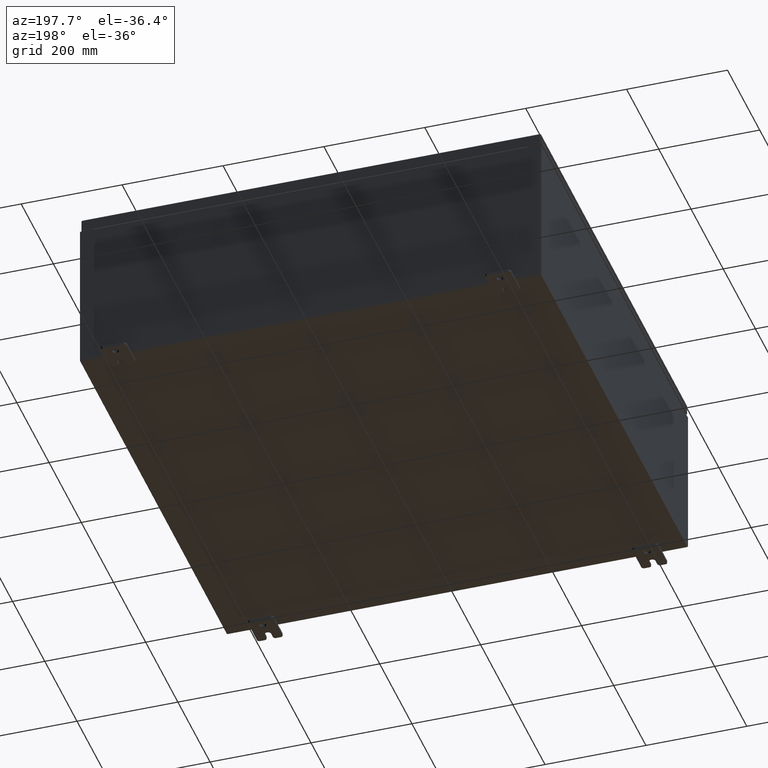
[diagram: clean part render]
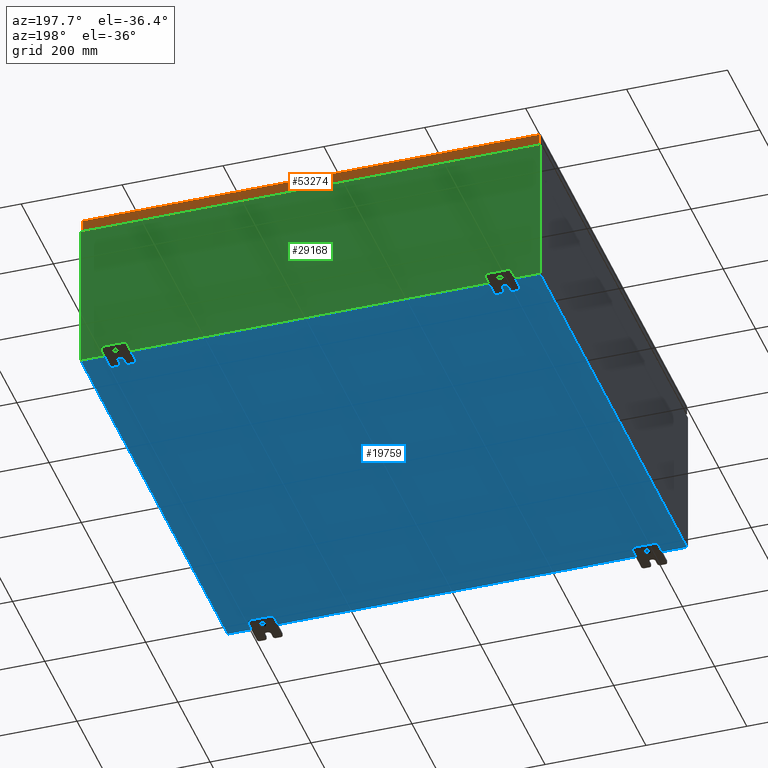
[diagram: same view with three faces highlighted in distinct colors, each labeled with its STEP entity id]
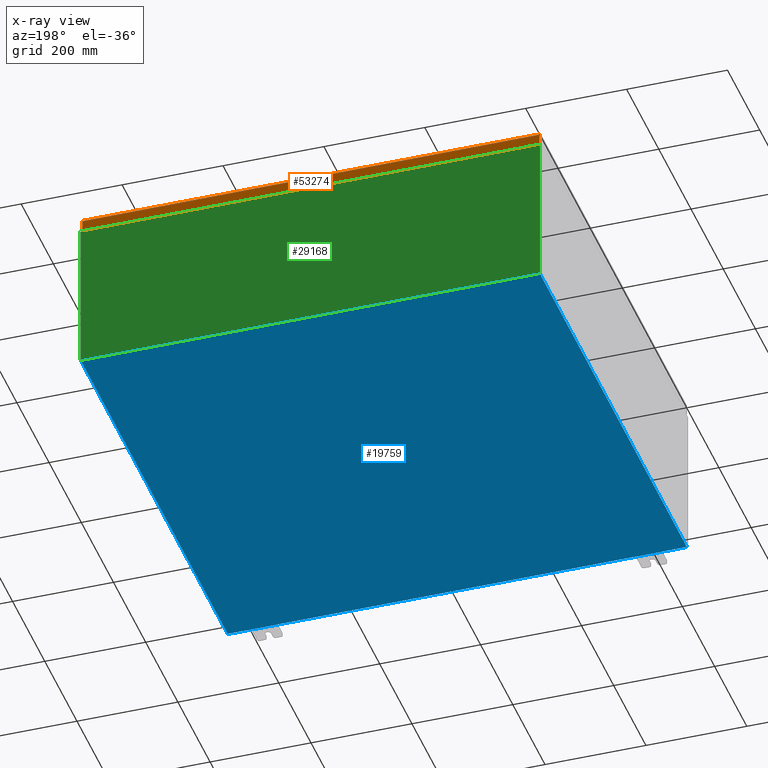
[diagram: x-ray of the same camera — body ghosted, the three highlighted faces saturated]
A machine part, auxiliary view with three faces highlighted in distinct colors.
The next image is the same camera in x-ray (body ghosted, the three faces saturated) — at least one of them is partly hidden behind the body in this view.
Their STEP definitions:

[orange] entity #53274 — the highlighted planar face has unit normal (0, -1, -0).
#287 = VERTEX_POINT ( 'NONE', #67165 ) ;
#442 = CARTESIAN_POINT ( 'NONE',  ( -17.84865786437626400, 17.93750000000000400, -0.9377000000000042000 ) ) ;
#3487 = VECTOR ( 'NONE', #4446, 39.37007874015748100 ) ;
#3960 = CARTESIAN_POINT ( 'NONE',  ( 17.84865786437626800, 17.93750000000000000, 4.568609605355732700E-014 ) ) ;
#4446 = DIRECTION ( 'NONE',  ( 1.000000000000000000, 8.758115402030106700E-047, 1.218385167906012900E-016 ) ) ;
#14673 = VERTEX_POINT ( 'NONE', #442 ) ;
#14782 = VECTOR ( 'NONE', #44418, 39.37007874015748100 ) ;
#16240 = VERTEX_POINT ( 'NONE', #20143 ) ;
#17468 = LINE ( 'NONE', #20654, #59742 ) ;
#20143 = CARTESIAN_POINT ( 'NONE',  ( 17.84865786437627100, 17.93750000000000400, -0.9376999999999997600 ) ) ;
#20654 = CARTESIAN_POINT ( 'NONE',  ( -17.93749999999999600, 17.93750000000000000, -0.08770000000000008300 ) ) ;
#21626 = EDGE_LOOP ( 'NONE', ( #65083, #34085, #39132, #28985 ) ) ;
#23486 = EDGE_CURVE ( 'NONE', #287, #30633, #17468, .T. ) ;
#23594 = LINE ( 'NONE', #3960, #64206 ) ;
#24988 = CARTESIAN_POINT ( 'NONE',  ( -5.534549032111184100E-030, 17.93750000000000000, 4.568609605355732700E-014 ) ) ;
#28890 = LINE ( 'NONE', #60131, #14782 ) ;
#28985 = ORIENTED_EDGE ( 'NONE', *, *, #46323, .F. ) ;
#30287 = DIRECTION ( 'NONE',  ( 3.085462875044562200E-031, -1.000000000000000000, -2.532419924601853100E-015 ) ) ;
#30633 = VERTEX_POINT ( 'NONE', #39890 ) ;
#30815 = EDGE_CURVE ( 'NONE', #287, #16240, #23594, .T. ) ;
#34085 = ORIENTED_EDGE ( 'NONE', *, *, #30815, .T. ) ;
#35675 = DIRECTION ( 'NONE',  ( 0.0000000000000000000, 2.532419924601853100E-015, -1.000000000000000000 ) ) ;
#39132 = ORIENTED_EDGE ( 'NONE', *, *, #55632, .F. ) ;
#39890 = CARTESIAN_POINT ( 'NONE',  ( -17.84865786437626800, 17.93750000000000000, -0.08769999999999898700 ) ) ;
#41505 = CARTESIAN_POINT ( 'NONE',  ( -17.93749999999999600, 17.93750000000000400, -0.9377000000000042000 ) ) ;
#42559 = AXIS2_PLACEMENT_3D ( 'NONE', #24988, #30287, #67365 ) ;
#44418 = DIRECTION ( 'NONE',  ( -0.0000000000000000000, 2.532419924601853100E-015, -1.000000000000000000 ) ) ;
#46323 = EDGE_CURVE ( 'NONE', #30633, #14673, #28890, .T. ) ;
#52502 = DIRECTION ( 'NONE',  ( -1.000000000000000000, -1.542731437522281700E-031, -6.091925839530064700E-017 ) ) ;
#53274 = ADVANCED_FACE ( 'NONE', ( #62481 ), #56760, .F. ) ;
#55632 = EDGE_CURVE ( 'NONE', #14673, #16240, #58189, .T. ) ;
#56760 = PLANE ( 'NONE',  #42559 ) ;
#58189 = LINE ( 'NONE', #41505, #3487 ) ;
#59742 = VECTOR ( 'NONE', #52502, 39.37007874015748100 ) ;
#60131 = CARTESIAN_POINT ( 'NONE',  ( -17.84865786437626400, 17.93750000000000000, -0.07469999999999980800 ) ) ;
#62481 = FACE_OUTER_BOUND ( 'NONE', #21626, .T. ) ;
#64206 = VECTOR ( 'NONE', #35675, 39.37007874015748100 ) ;
#65083 = ORIENTED_EDGE ( 'NONE', *, *, #23486, .F. ) ;
#67165 = CARTESIAN_POINT ( 'NONE',  ( 17.84865786437627100, 17.93750000000000000, -0.08769999999999789100 ) ) ;
#67365 = DIRECTION ( 'NONE',  ( 0.0000000000000000000, 2.532419924601853100E-015, -1.000000000000000000 ) ) ;

[blue] entity #19759 — the highlighted planar face has unit normal (0, 0, -1).
#1301 = CARTESIAN_POINT ( 'NONE',  ( -17.91229999999999800, -17.92530000000000000, -0.07469999999999994700 ) ) ;
#2124 = VECTOR ( 'NONE', #18037, 39.37007874015748100 ) ;
#2499 = PLANE ( 'NONE',  #27331 ) ;
#7597 = EDGE_CURVE ( 'NONE', #48129, #64986, #61184, .T. ) ;
#7827 = DIRECTION ( 'NONE',  ( 0.0000000000000000000, 0.0000000000000000000, -1.000000000000000000 ) ) ;
#12361 = EDGE_CURVE ( 'NONE', #48129, #57838, #44436, .T. ) ;
#14572 = ORIENTED_EDGE ( 'NONE', *, *, #17132, .T. ) ;
#14764 = CARTESIAN_POINT ( 'NONE',  ( 17.91229999999999800, -17.92530000000000000, -0.07470000000000000300 ) ) ;
#17132 = EDGE_CURVE ( 'NONE', #59037, #57838, #32418, .T. ) ;
#18037 = DIRECTION ( 'NONE',  ( -1.000000000000000000, -0.0000000000000000000, -0.0000000000000000000 ) ) ;
#18221 = ORIENTED_EDGE ( 'NONE', *, *, #12361, .F. ) ;
#18342 = VECTOR ( 'NONE', #38369, 39.37007874015748100 ) ;
#19759 = ADVANCED_FACE ( 'NONE', ( #63747 ), #2499, .T. ) ;
#20555 = VECTOR ( 'NONE', #33342, 39.37007874015748100 ) ;
#23070 = CARTESIAN_POINT ( 'NONE',  ( -18.00000000000000000, -17.92530000000000000, -0.07470000000000000300 ) ) ;
#27331 = AXIS2_PLACEMENT_3D ( 'NONE', #33980, #7827, #44929 ) ;
#28412 = DIRECTION ( 'NONE',  ( 1.000000000000000000, 0.0000000000000000000, 0.0000000000000000000 ) ) ;
#32418 = LINE ( 'NONE', #1301, #18342 ) ;
#32499 = CARTESIAN_POINT ( 'NONE',  ( -17.91229999999999800, 17.92530000000000000, -0.07470000000000000300 ) ) ;
#33214 = ORIENTED_EDGE ( 'NONE', *, *, #36134, .F. ) ;
#33342 = DIRECTION ( 'NONE',  ( -0.0000000000000000000, -1.000000000000000000, 8.208677865577646300E-017 ) ) ;
#33980 = CARTESIAN_POINT ( 'NONE',  ( 0.0000000000000000000, 0.0000000000000000000, -0.07470000000000000300 ) ) ;
#36134 = EDGE_CURVE ( 'NONE', #59037, #64986, #37257, .T. ) ;
#37257 = LINE ( 'NONE', #23070, #63759 ) ;
#38369 = DIRECTION ( 'NONE',  ( -0.0000000000000000000, 1.000000000000000000, -0.0000000000000000000 ) ) ;
#38803 = EDGE_LOOP ( 'NONE', ( #33214, #14572, #18221, #62213 ) ) ;
#39370 = CARTESIAN_POINT ( 'NONE',  ( -18.00000000000000000, 17.92530000000000000, -0.07470000000000000300 ) ) ;
#41168 = CARTESIAN_POINT ( 'NONE',  ( 17.91229999999999800, 17.92530000000000000, -0.07470000000000251400 ) ) ;
#44436 = LINE ( 'NONE', #39370, #2124 ) ;
#44929 = DIRECTION ( 'NONE',  ( -1.000000000000000000, 0.0000000000000000000, -0.0000000000000000000 ) ) ;
#46494 = CARTESIAN_POINT ( 'NONE',  ( -17.91229999999999800, -17.92530000000000000, -0.07469999999999994700 ) ) ;
#48129 = VERTEX_POINT ( 'NONE', #41168 ) ;
#54494 = CARTESIAN_POINT ( 'NONE',  ( 17.91229999999999800, 17.92530000000000000, -0.07470000000000251400 ) ) ;
#57838 = VERTEX_POINT ( 'NONE', #32499 ) ;
#59037 = VERTEX_POINT ( 'NONE', #46494 ) ;
#61184 = LINE ( 'NONE', #54494, #20555 ) ;
#62213 = ORIENTED_EDGE ( 'NONE', *, *, #7597, .T. ) ;
#63747 = FACE_OUTER_BOUND ( 'NONE', #38803, .T. ) ;
#63759 = VECTOR ( 'NONE', #28412, 39.37007874015748100 ) ;
#64986 = VERTEX_POINT ( 'NONE', #14764 ) ;

[green] entity #29168 — the highlighted planar face has unit normal (0, -1, 0).
#1702 = CARTESIAN_POINT ( 'NONE',  ( 16.92455000000000000, 0.0000000000000000000, 5.874949999999999200 ) ) ;
#1932 = DIRECTION ( 'NONE',  ( -0.0000000000000000000, 1.000000000000000000, -0.0000000000000000000 ) ) ;
#2116 = VECTOR ( 'NONE', #67635, 39.37007874015748100 ) ;
#3279 = ORIENTED_EDGE ( 'NONE', *, *, #48898, .T. ) ;
#3785 = LINE ( 'NONE', #67855, #2116 ) ;
#3985 = LINE ( 'NONE', #44366, #18059 ) ;
#4271 = CARTESIAN_POINT ( 'NONE',  ( 16.90587500000000200, 0.0000000000000000000, 5.874949999999999200 ) ) ;
#5786 = CARTESIAN_POINT ( 'NONE',  ( -17.92529999999999600, 0.0000000000000000000, 5.925299999999999100 ) ) ;
#6108 = LINE ( 'NONE', #21325, #60789 ) ;
#6749 = ORIENTED_EDGE ( 'NONE', *, *, #10970, .T. ) ;
#6953 = CARTESIAN_POINT ( 'NONE',  ( -16.92454999999998900, 0.0000000000000000000, 5.874949999999999200 ) ) ;
#8382 = VERTEX_POINT ( 'NONE', #27064 ) ;
#8924 = ORIENTED_EDGE ( 'NONE', *, *, #25384, .F. ) ;
#9248 = AXIS2_PLACEMENT_3D ( 'NONE', #33636, #1932, #39003 ) ;
#9584 = DIRECTION ( 'NONE',  ( 0.0000000000000000000, 0.0000000000000000000, -1.000000000000000000 ) ) ;
#9950 = EDGE_CURVE ( 'NONE', #31233, #55531, #21247, .T. ) ;
#10208 = VERTEX_POINT ( 'NONE', #50889 ) ;
#10418 = VECTOR ( 'NONE', #63743, 39.37007874015748100 ) ;
#10970 = EDGE_CURVE ( 'NONE', #31233, #52489, #3785, .T. ) ;
#12163 = ORIENTED_EDGE ( 'NONE', *, *, #66143, .F. ) ;
#12261 = VERTEX_POINT ( 'NONE', #6953 ) ;
#12827 = CARTESIAN_POINT ( 'NONE',  ( -17.92529999999999600, 0.0000000000000000000, 5.925299999999999100 ) ) ;
#13359 = PLANE ( 'NONE',  #26278 ) ;
#14107 = DIRECTION ( 'NONE',  ( 0.0000000000000000000, 0.0000000000000000000, 1.000000000000000000 ) ) ;
#14430 = LINE ( 'NONE', #45901, #33514 ) ;
#15075 = CARTESIAN_POINT ( 'NONE',  ( 16.88720000000000000, 0.0000000000000000000, 5.874949999999999200 ) ) ;
#15965 = VERTEX_POINT ( 'NONE', #63696 ) ;
#17720 = VERTEX_POINT ( 'NONE', #1702 ) ;
#17914 = DIRECTION ( 'NONE',  ( 0.0000000000000000000, 0.0000000000000000000, 1.000000000000000000 ) ) ;
#18059 = VECTOR ( 'NONE', #17914, 39.37007874015748100 ) ;
#18710 = DIRECTION ( 'NONE',  ( 0.0000000000000000000, -0.0000000000000000000, -1.000000000000000000 ) ) ;
#21247 = LINE ( 'NONE', #42793, #33660 ) ;
#21325 = CARTESIAN_POINT ( 'NONE',  ( -17.92529999999999600, 0.0000000000000000000, 5.925299999999999100 ) ) ;
#22318 = CIRCLE ( 'NONE', #32368, 0.01867499999999949400 ) ;
#22447 = CARTESIAN_POINT ( 'NONE',  ( -16.88719999999998900, 3.756290991288361700E-016, 5.912299999999999200 ) ) ;
#22566 = VERTEX_POINT ( 'NONE', #64648 ) ;
#24403 = ORIENTED_EDGE ( 'NONE', *, *, #31034, .T. ) ;
#24507 = LINE ( 'NONE', #31995, #10418 ) ;
#24708 = DIRECTION ( 'NONE',  ( -8.681145560799821800E-014, 0.0000000000000000000, -1.000000000000000000 ) ) ;
#24727 = VERTEX_POINT ( 'NONE', #40346 ) ;
#24801 = CARTESIAN_POINT ( 'NONE',  ( -16.88719999999998900, -0.0000000000000000000, 5.874949999999999200 ) ) ;
#25384 = EDGE_CURVE ( 'NONE', #17720, #25714, #22318, .T. ) ;
#25714 = VERTEX_POINT ( 'NONE', #15075 ) ;
#26278 = AXIS2_PLACEMENT_3D ( 'NONE', #60873, #50486, #18710 ) ;
#26392 = ORIENTED_EDGE ( 'NONE', *, *, #31568, .F. ) ;
#27064 = CARTESIAN_POINT ( 'NONE',  ( 17.92530000000000400, 0.0000000000000000000, -5.925300000000000000 ) ) ;
#28327 = ORIENTED_EDGE ( 'NONE', *, *, #59219, .T. ) ;
#29168 = ADVANCED_FACE ( 'NONE', ( #43653 ), #13359, .F. ) ;
#30999 = LINE ( 'NONE', #37310, #55913 ) ;
#31034 = EDGE_CURVE ( 'NONE', #22566, #8382, #30999, .T. ) ;
#31233 = VERTEX_POINT ( 'NONE', #22447 ) ;
#31568 = EDGE_CURVE ( 'NONE', #10208, #17720, #57632, .T. ) ;
#31995 = CARTESIAN_POINT ( 'NONE',  ( -17.92529999999999600, 0.0000000000000000000, -5.925300000000000000 ) ) ;
#32119 = CIRCLE ( 'NONE', #9248, 0.01867499999999949400 ) ;
#32368 = AXIS2_PLACEMENT_3D ( 'NONE', #4271, #41343, #9584 ) ;
#32461 = ORIENTED_EDGE ( 'NONE', *, *, #9950, .F. ) ;
#33514 = VECTOR ( 'NONE', #14107, 39.37007874015748100 ) ;
#33636 = CARTESIAN_POINT ( 'NONE',  ( -16.90587499999999100, 0.0000000000000000000, 5.874949999999999200 ) ) ;
#33638 = ORIENTED_EDGE ( 'NONE', *, *, #42031, .F. ) ;
#33660 = VECTOR ( 'NONE', #64068, 39.37007874015748100 ) ;
#35127 = CARTESIAN_POINT ( 'NONE',  ( 16.92454999999949200, -0.0000000000000000000, -1.469244821010302200E-012 ) ) ;
#37310 = CARTESIAN_POINT ( 'NONE',  ( 17.92530000000000400, 0.0000000000000000000, 5.925300000000000000 ) ) ;
#37861 = VECTOR ( 'NONE', #42863, 39.37007874015748100 ) ;
#39003 = DIRECTION ( 'NONE',  ( 0.0000000000000000000, 0.0000000000000000000, -1.000000000000000000 ) ) ;
#39478 = EDGE_CURVE ( 'NONE', #24727, #40803, #48675, .T. ) ;
#40346 = CARTESIAN_POINT ( 'NONE',  ( -17.92529999999999600, 0.0000000000000000000, -5.925300000000000000 ) ) ;
#40803 = VERTEX_POINT ( 'NONE', #12827 ) ;
#41343 = DIRECTION ( 'NONE',  ( -0.0000000000000000000, 1.000000000000000000, -0.0000000000000000000 ) ) ;
#42031 = EDGE_CURVE ( 'NONE', #12261, #15965, #14430, .T. ) ;
#42793 = CARTESIAN_POINT ( 'NONE',  ( -16.88719999999998900, -0.0000000000000000000, 0.0000000000000000000 ) ) ;
#42863 = DIRECTION ( 'NONE',  ( -0.0000000000000000000, -0.0000000000000000000, 1.000000000000000000 ) ) ;
#43599 = VECTOR ( 'NONE', #24708, 39.37007874015748100 ) ;
#43653 = FACE_OUTER_BOUND ( 'NONE', #55612, .T. ) ;
#44366 = CARTESIAN_POINT ( 'NONE',  ( 16.88720000000000000, 0.0000000000000000000, 0.0000000000000000000 ) ) ;
#45901 = CARTESIAN_POINT ( 'NONE',  ( -16.92454999999998900, -0.0000000000000000000, 0.0000000000000000000 ) ) ;
#47231 = EDGE_CURVE ( 'NONE', #25714, #52489, #3985, .T. ) ;
#48675 = LINE ( 'NONE', #5786, #37861 ) ;
#48898 = EDGE_CURVE ( 'NONE', #10208, #22566, #58567, .T. ) ;
#49517 = EDGE_CURVE ( 'NONE', #8382, #24727, #24507, .T. ) ;
#49735 = CARTESIAN_POINT ( 'NONE',  ( -17.92529999999999600, 0.0000000000000000000, 5.925299999999999100 ) ) ;
#50486 = DIRECTION ( 'NONE',  ( 0.0000000000000000000, -1.000000000000000000, 0.0000000000000000000 ) ) ;
#50889 = CARTESIAN_POINT ( 'NONE',  ( 16.92455000000000400, 0.0000000000000000000, 5.925300000000000000 ) ) ;
#52489 = VERTEX_POINT ( 'NONE', #65154 ) ;
#53134 = DIRECTION ( 'NONE',  ( 1.000000000000000000, 0.0000000000000000000, 3.048036009064577000E-017 ) ) ;
#55045 = DIRECTION ( 'NONE',  ( 1.000000000000000000, 0.0000000000000000000, 3.048036009064577000E-017 ) ) ;
#55531 = VERTEX_POINT ( 'NONE', #24801 ) ;
#55612 = EDGE_LOOP ( 'NONE', ( #33638, #12163, #32461, #6749, #60014, #8924, #26392, #3279, #24403, #62208, #65552, #28327 ) ) ;
#55913 = VECTOR ( 'NONE', #63237, 39.37007874015748100 ) ;
#57632 = LINE ( 'NONE', #35127, #43599 ) ;
#58567 = LINE ( 'NONE', #49735, #60213 ) ;
#59219 = EDGE_CURVE ( 'NONE', #40803, #15965, #6108, .T. ) ;
#60014 = ORIENTED_EDGE ( 'NONE', *, *, #47231, .F. ) ;
#60213 = VECTOR ( 'NONE', #55045, 39.37007874015748100 ) ;
#60789 = VECTOR ( 'NONE', #53134, 39.37007874015748100 ) ;
#60873 = CARTESIAN_POINT ( 'NONE',  ( 0.0000000000000000000, 0.0000000000000000000, 0.0000000000000000000 ) ) ;
#62208 = ORIENTED_EDGE ( 'NONE', *, *, #49517, .T. ) ;
#63237 = DIRECTION ( 'NONE',  ( 0.0000000000000000000, 0.0000000000000000000, -1.000000000000000000 ) ) ;
#63696 = CARTESIAN_POINT ( 'NONE',  ( -16.92454999999998900, 0.0000000000000000000, 5.925299999999999100 ) ) ;
#63743 = DIRECTION ( 'NONE',  ( -1.000000000000000000, -0.0000000000000000000, -0.0000000000000000000 ) ) ;
#64068 = DIRECTION ( 'NONE',  ( 0.0000000000000000000, 0.0000000000000000000, -1.000000000000000000 ) ) ;
#64648 = CARTESIAN_POINT ( 'NONE',  ( 17.92530000000000400, 0.0000000000000000000, 5.925300000000000000 ) ) ;
#65154 = CARTESIAN_POINT ( 'NONE',  ( 16.88720000000000000, 0.0000000000000000000, 5.912299999999999200 ) ) ;
#65552 = ORIENTED_EDGE ( 'NONE', *, *, #39478, .T. ) ;
#66143 = EDGE_CURVE ( 'NONE', #55531, #12261, #32119, .T. ) ;
#67635 = DIRECTION ( 'NONE',  ( 1.000000000000000000, 0.0000000000000000000, 0.0000000000000000000 ) ) ;
#67855 = CARTESIAN_POINT ( 'NONE',  ( -16.88719999999999600, 3.756290991288361700E-016, 5.912299999999999200 ) ) ;